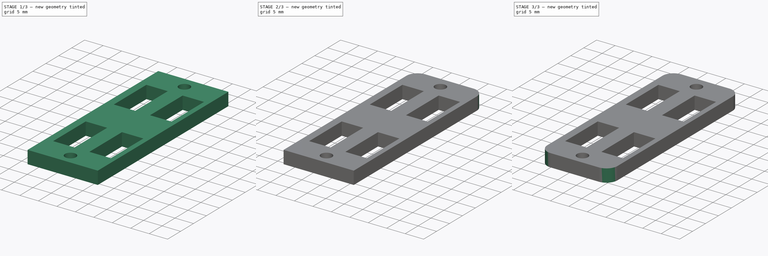
[diagram: build sequence overview — one tinted view per stage of 3, left to right]
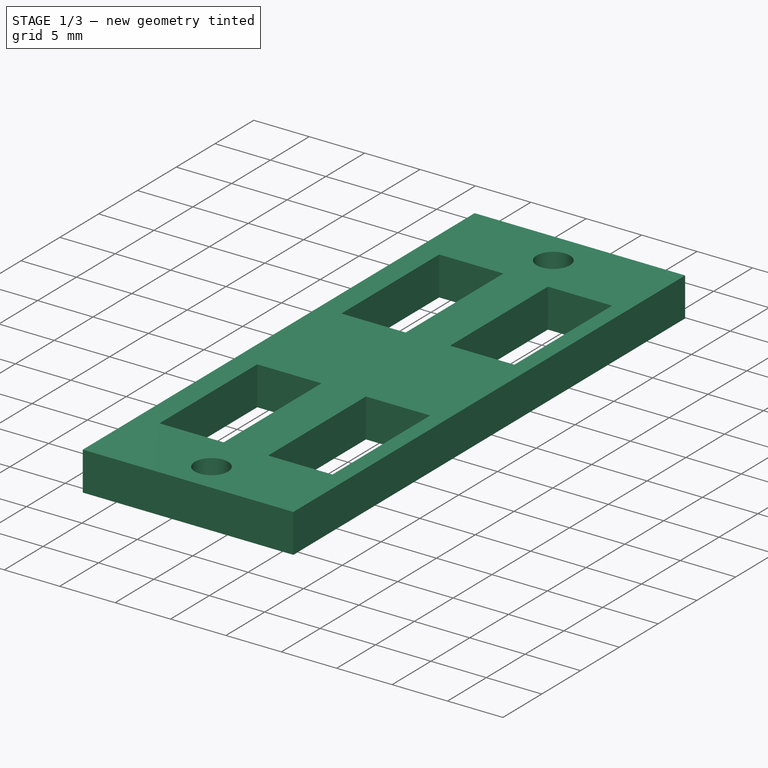
[diagram: stage 1 of 3 — iso view after this stage's code; geometry added in this stage tinted green]
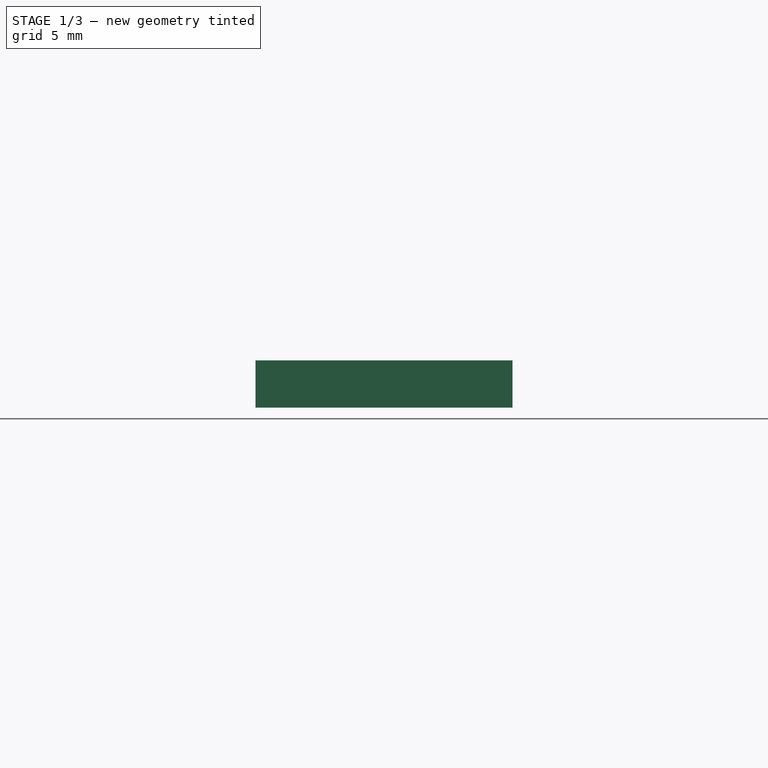
[diagram: stage 1 of 3 — front view after this stage's code; geometry added in this stage tinted green]
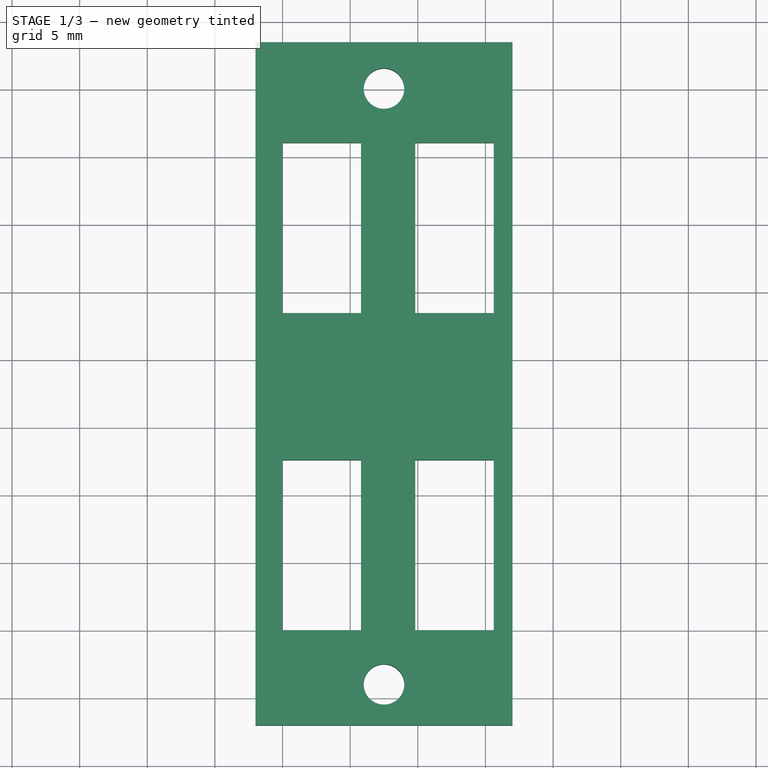
[diagram: stage 1 of 3 — top view after this stage's code; geometry added in this stage tinted green]
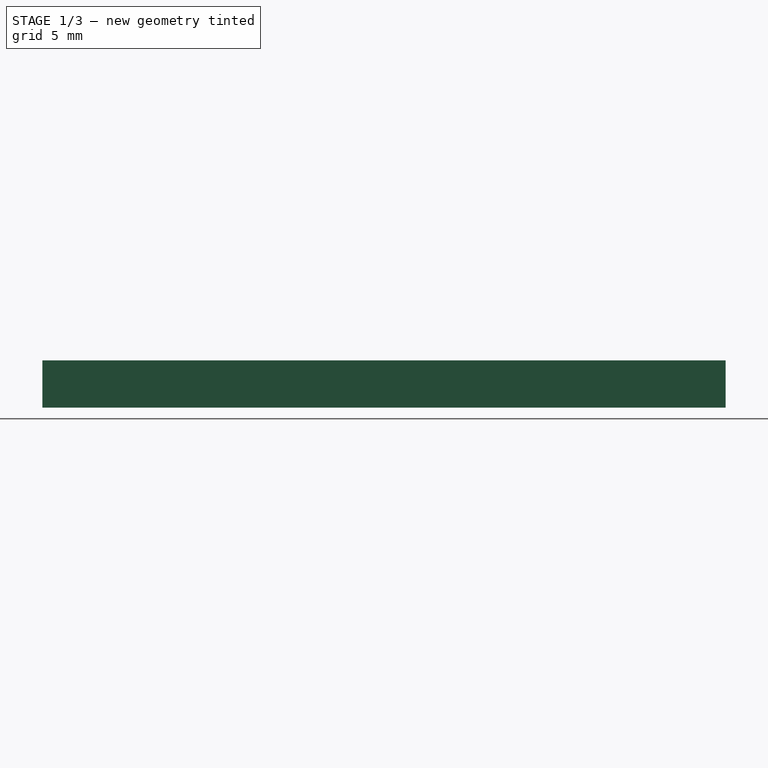
[diagram: stage 1 of 3 — right view after this stage's code; geometry added in this stage tinted green]
FCSTD DOCUMENT  (FreeCAD 0.18.4R)
Label: left_case_2_motore_conn
License: All rights reserved
LicenseURL: http://en.wikipedia.org/wiki/All_rights_reserved
objects: PartDesign::Fillet×4, Sketcher::SketchObject×2, PartDesign::Pad×1, PartDesign::Pocket×1, PartDesign::Body×1
note: 11 computed .brp shape members not serialized (recipe doc carries the construction recipe); baked Part::Feature solids carry a one-line shape summary decoded from their .brp

FEATURE [Sketcher::SketchObject] Sketch
  MapMode = 5
  Support = -> [XY_Plane]
  sketch-geometry (4):
    g0: LineSegment StartX=-2 StartY=43.48 StartZ=0 EndX=17 EndY=43.48 EndZ=0
    g1: LineSegment StartX=17 StartY=43.48 StartZ=0 EndX=17 EndY=-7.02 EndZ=0
    g2: LineSegment StartX=17 StartY=-7.02 StartZ=0 EndX=-2 EndY=-7.02 EndZ=0
    g3: LineSegment StartX=-2 StartY=-7.02 StartZ=0 EndX=-2 EndY=43.48 EndZ=0
  constraints (12):
    c: Coincident(g0,g1)
    c: Coincident(g1,g2)
    c: Coincident(g2,g3)
    c: Coincident(g3,g0)
    c: Horizontal(g2)
    c: Vertical(g1)
    c: DistanceX(g0,g0) = 19
    c: Distance(g1) = 50.5
    c: Perpendicular(g3,g0)
    c: Perpendicular(g3,g2)
    c: DistanceY(g-1,g2) = -7.02
    c: DistanceX(g-2,g2) = -2
FEATURE [PartDesign::Pad] Pad
  Length = 3.5
  Length2 = 100
  Profile = -> Sketch
  Type = 0
FEATURE [Sketcher::SketchObject] Sketch001
  ExternalGeometry = -> [Pad]
  MapMode = 5
  Placement = pos=(0,0,3.5) rot=(0,0,1;0rad)
  Support = -> [Pad]
  sketch-geometry (18):
    g0: LineSegment StartX=0 StartY=36.05 StartZ=0 EndX=5.8 EndY=36.05 EndZ=0
    g1: LineSegment StartX=5.8 StartY=36.05 StartZ=0 EndX=5.8 EndY=23.45 EndZ=0
    g2: LineSegment StartX=5.8 StartY=23.45 StartZ=0 EndX=0 EndY=23.45 EndZ=0
    g3: LineSegment StartX=0 StartY=23.45 StartZ=0 EndX=0 EndY=36.05 EndZ=0
    g4: LineSegment StartX=9.81 StartY=36.05 StartZ=0 EndX=15.61 EndY=36.05 EndZ=0
    g5: LineSegment StartX=15.61 StartY=36.05 StartZ=0 EndX=15.61 EndY=23.45 EndZ=0
    g6: LineSegment StartX=15.61 StartY=23.45 StartZ=0 EndX=9.81 EndY=23.45 EndZ=0
    g7: LineSegment StartX=9.81 StartY=23.45 StartZ=0 EndX=9.81 EndY=36.05 EndZ=0
    g8: LineSegment StartX=0 StartY=12.6 StartZ=0 EndX=5.8 EndY=12.6 EndZ=0
    g9: LineSegment StartX=5.8 StartY=12.6 StartZ=0 EndX=5.8 EndY=0 EndZ=0
    g10: LineSegment StartX=5.8 StartY=0 StartZ=0 EndX=0 EndY=0 EndZ=0
    g11: LineSegment StartX=0 StartY=0 StartZ=0 EndX=0 EndY=12.6 EndZ=0
    g12: LineSegment StartX=9.81 StartY=0 StartZ=0 EndX=15.61 EndY=0 EndZ=0
    g13: LineSegment StartX=15.61 StartY=0 StartZ=0 EndX=15.61 EndY=12.6 EndZ=0
    g14: LineSegment StartX=15.61 StartY=12.6 StartZ=0 EndX=9.81 EndY=12.6 EndZ=0
    g15: LineSegment StartX=9.81 StartY=12.6 StartZ=0 EndX=9.81 EndY=0 EndZ=0
    g16: Circle CenterX=7.5 CenterY=-4 CenterZ=0 NormalX=0 NormalY=0 NormalZ=1 AngleXU=0 Radius=1.5
    g17: Circle CenterX=7.5 CenterY=40.05 CenterZ=0 NormalX=0 NormalY=0 NormalZ=1 AngleXU=0 Radius=1.5
  constraints (55):
    c: Coincident(g0,g1)
    c: Coincident(g1,g2)
    c: Coincident(g2,g3)
    c: Coincident(g3,g0)
    c: Horizontal(g0)
    c: Horizontal(g2)
    c: Vertical(g1)
    c: Vertical(g3)
    c: Coincident(g4,g5)
    c: Coincident(g5,g6)
    c: Coincident(g6,g7)
    c: Coincident(g7,g4)
    c: Horizontal(g4)
    c: Horizontal(g6)
    c: Vertical(g5)
    c: Vertical(g7)
    c: Coincident(g8,g9)
    c: Coincident(g9,g10)
    c: Coincident(g10,g11)
    c: Coincident(g11,g8)
    c: Horizontal(g8)
    c: Horizontal(g10)
    c: Vertical(g9)
    c: Vertical(g11)
    c: DistanceY(g1,g1) = 12.6
    c: DistanceY(g5,g5) = 12.6
    c: DistanceY(g9,g9) = 12.6
    c: Coincident(g12,g13)
    c: Coincident(g13,g14)
    c: Coincident(g14,g15)
    c: Coincident(g15,g12)
    c: Horizontal(g12)
    c: Horizontal(g14)
    c: Vertical(g13)
    c: Vertical(g15)
    c: DistanceY(g13,g13) = 12.6
    c: DistanceX(g0,g0) = 5.8
    c: DistanceX(g4,g4) = 5.8
    c: DistanceX(g8,g8) = 5.8
    c: DistanceX(g14,g14) = 5.8
    c: Horizontal(g0,g4)
    c: Horizontal(g10,g12)
    c: Horizontal(g12,g-1)
    c: Vertical(g8,g2)
    c: Vertical(g14,g6)
    c: PointOnObject(g2,g-2)
    c: Radius(g16) = 1.5
    c: Radius(g17) = 1.5
    c: DistanceY(g-1,g16) = -4
    c: Distance(g-4) = 50.5
    c: Distance(g-4) = 50.5
    c: Distance(g17,g4) = 4
    c: Distance(g4,g1) = 4.01
    c: Distance(g17,g-4) = 9.5
    c: Distance(g16,g-4) = 9.5
FEATURE [PartDesign::Pocket] Pocket
  BaseFeature = -> Pad
  Length = 3.5
  Length2 = 100
  Profile = -> Sketch001
  Type = 0
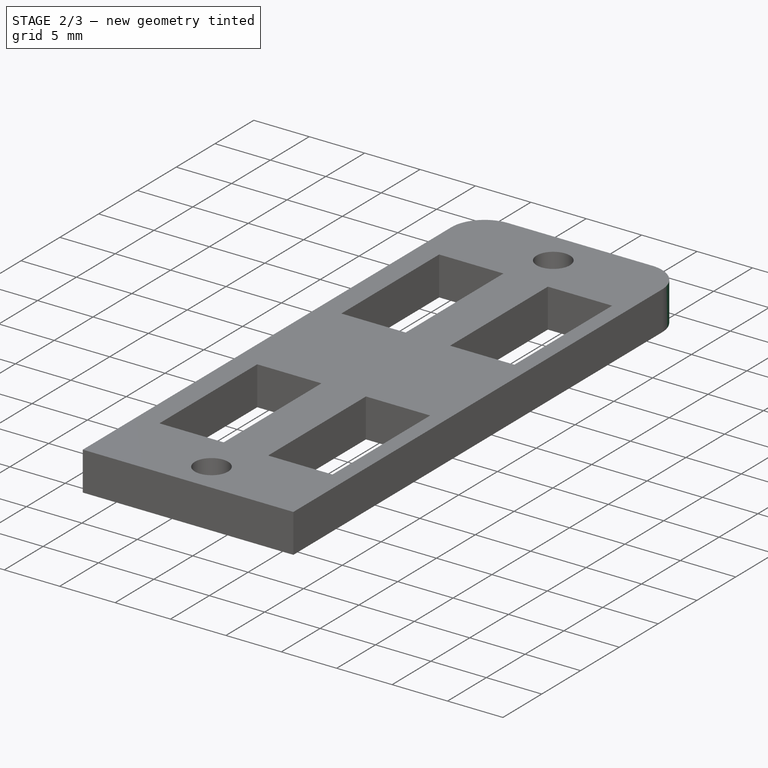
[diagram: stage 2 of 3 — iso view after this stage's code; geometry added in this stage tinted green]
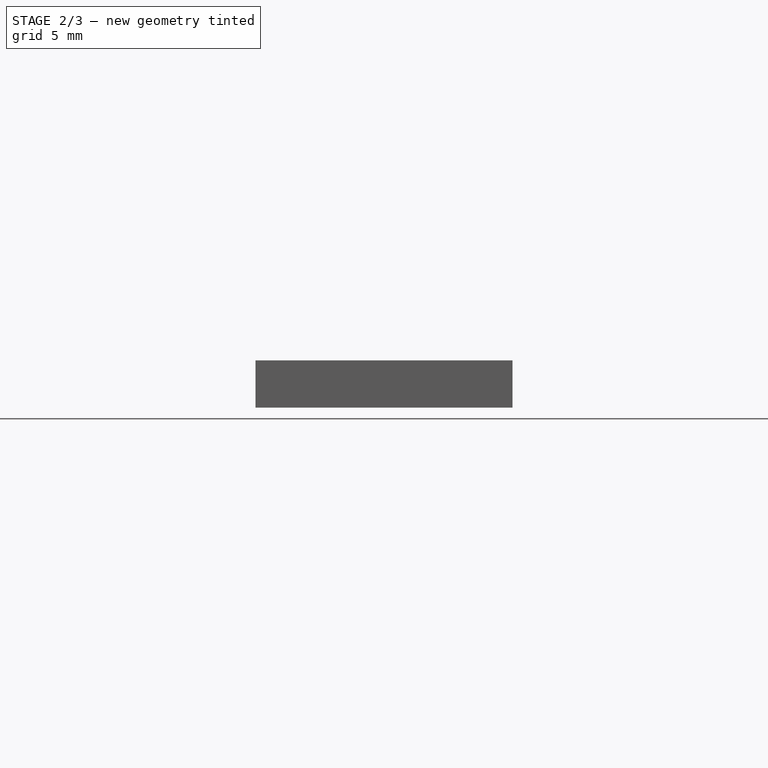
[diagram: stage 2 of 3 — front view after this stage's code; geometry added in this stage tinted green]
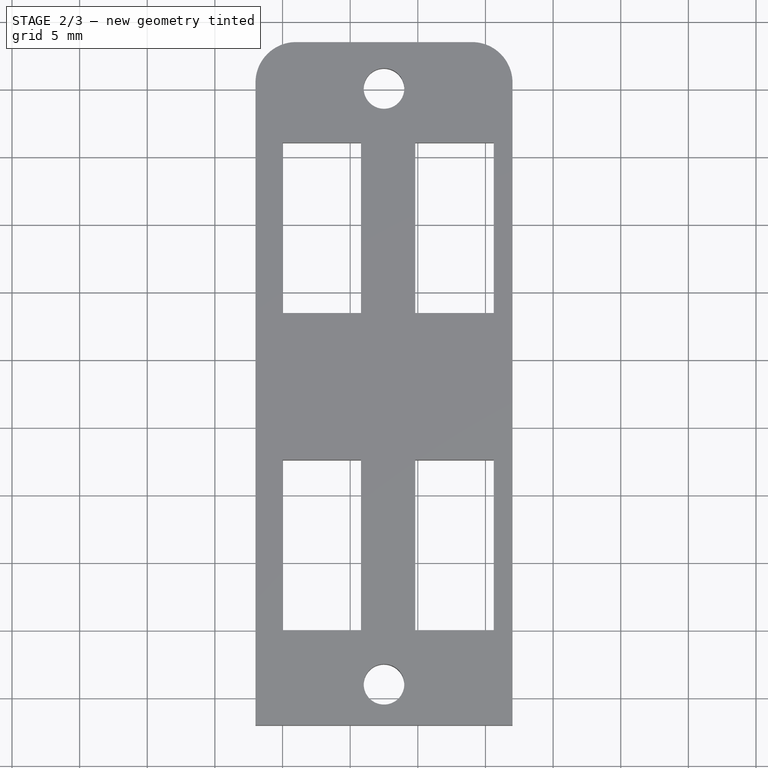
[diagram: stage 2 of 3 — top view after this stage's code; geometry added in this stage tinted green]
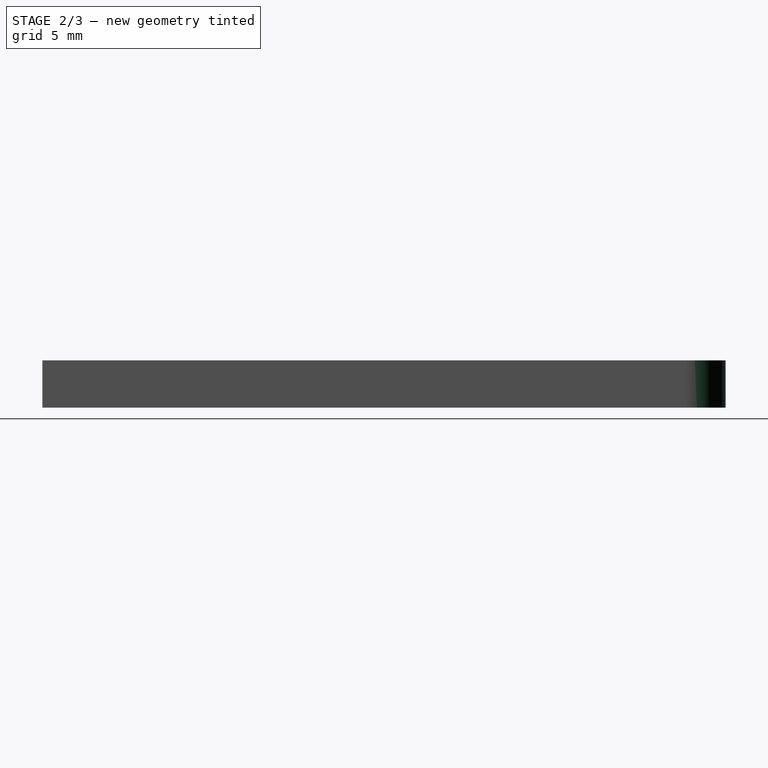
[diagram: stage 2 of 3 — right view after this stage's code; geometry added in this stage tinted green]
FEATURE [PartDesign::Fillet] Fillet
  Base = -> Pocket [Edge1]
  BaseFeature = -> Pocket
  Radius = 3
FEATURE [PartDesign::Fillet] Fillet001
  Base = -> Fillet [Edge3]
  BaseFeature = -> Fillet
  Radius = 3
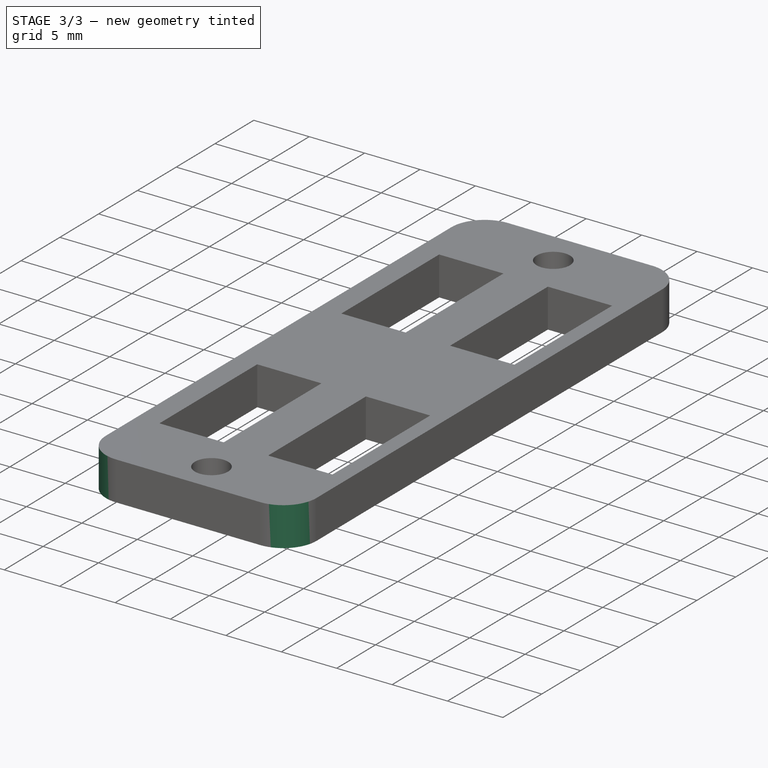
[diagram: stage 3 of 3 — iso view after this stage's code; geometry added in this stage tinted green]
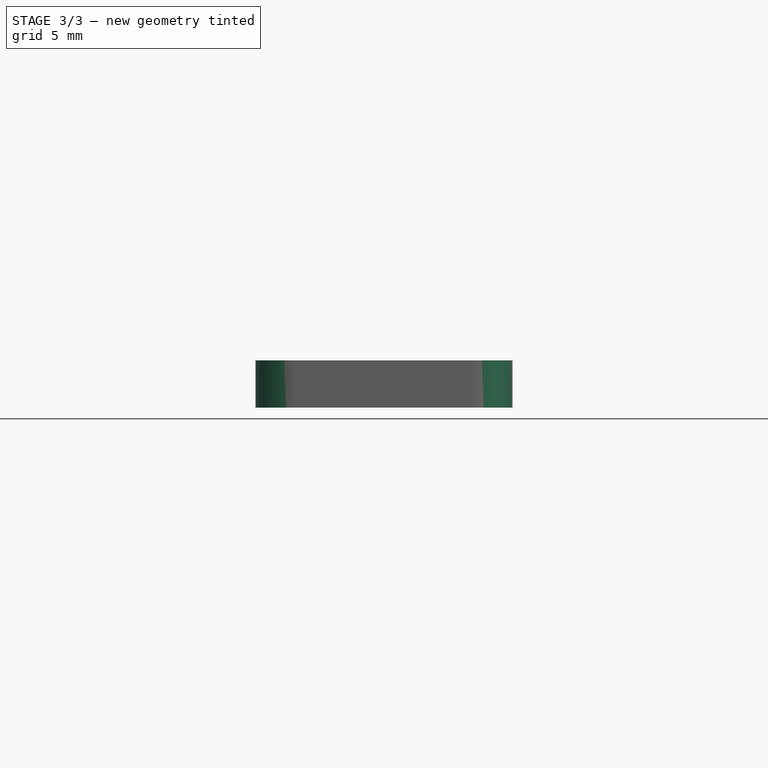
[diagram: stage 3 of 3 — front view after this stage's code; geometry added in this stage tinted green]
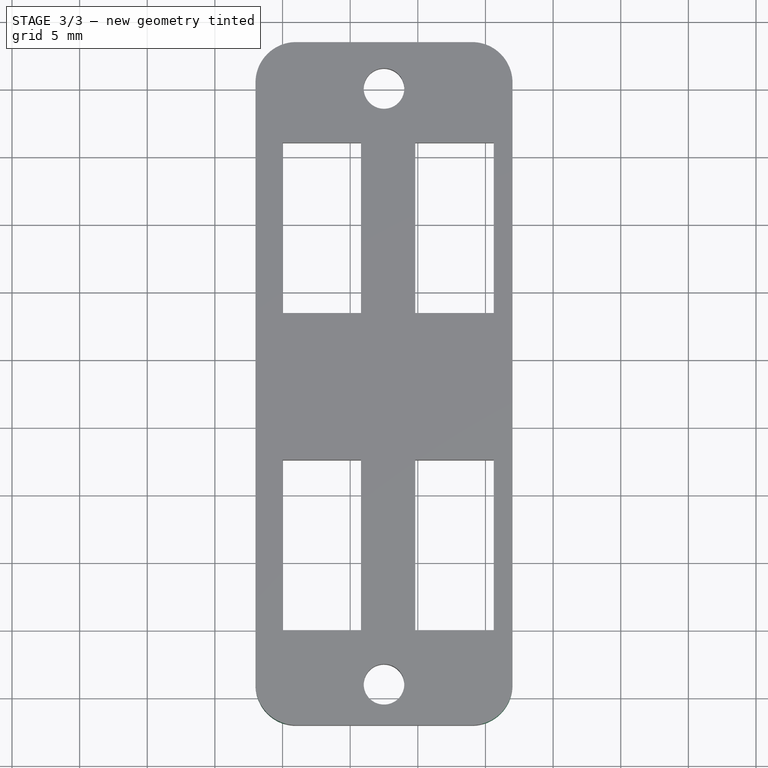
[diagram: stage 3 of 3 — top view after this stage's code; geometry added in this stage tinted green]
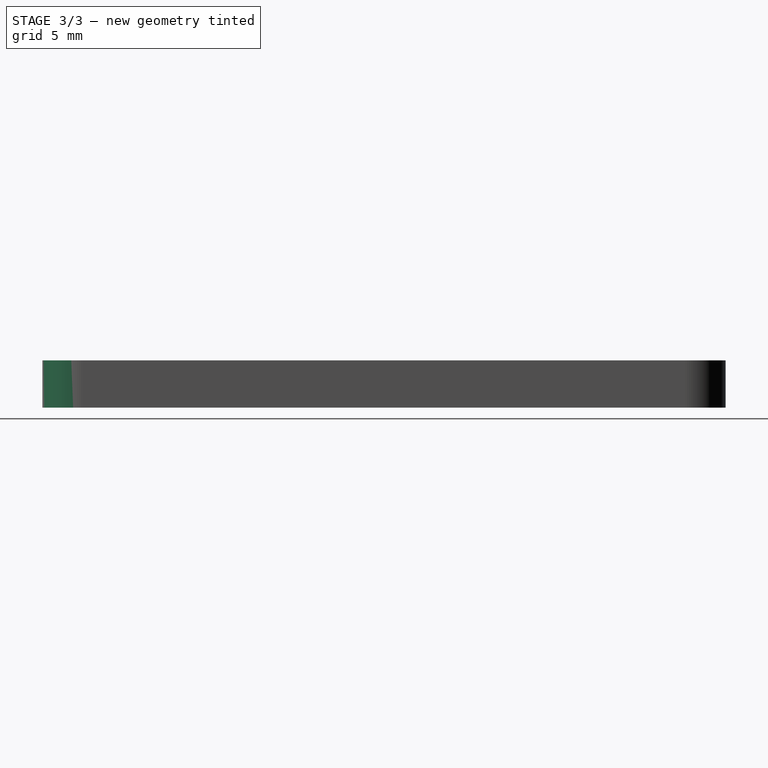
[diagram: stage 3 of 3 — right view after this stage's code; geometry added in this stage tinted green]
FEATURE [PartDesign::Fillet] Fillet002
  Base = -> Fillet001 [Edge53]
  BaseFeature = -> Fillet001
  Radius = 3
FEATURE [PartDesign::Fillet] Fillet003
  Base = -> Fillet002 [Edge33]
  BaseFeature = -> Fillet002
  Radius = 3
FEATURE [PartDesign::Body] Body
  Group = -> [Sketch,Pad,Sketch001,Pocket,Fillet,Fillet001,Fillet002,Fillet003]
  Origin = -> Origin
  Tip = -> Fillet003
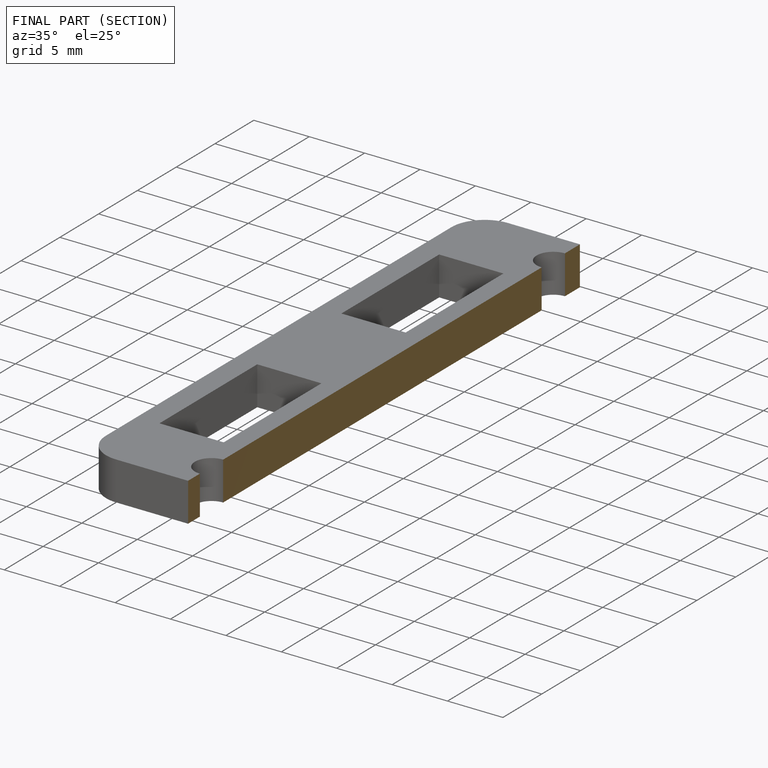
[diagram: finished part — half-section view (interior)]
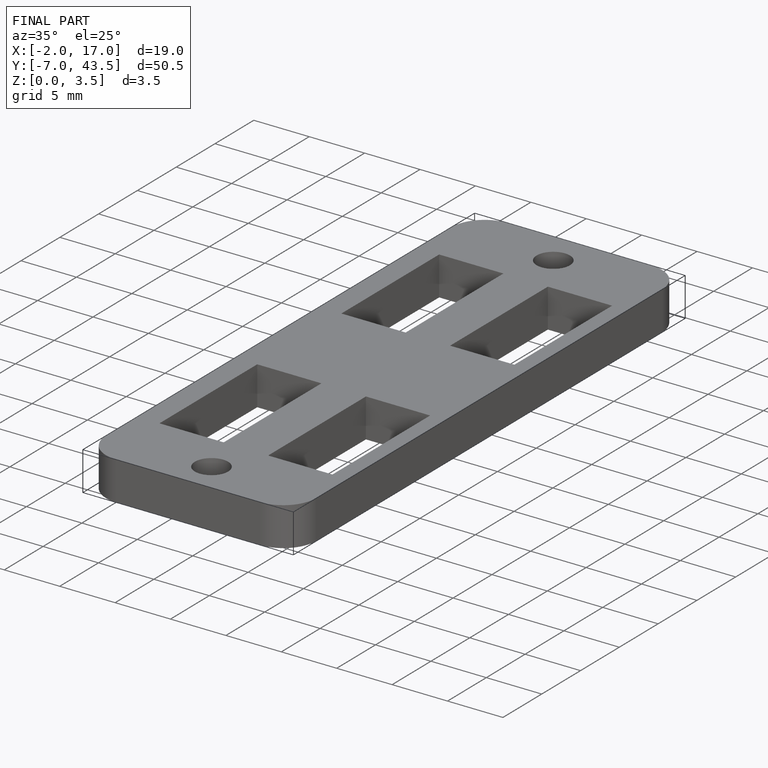
[diagram: finished part — iso view with bounding-box wireframe]
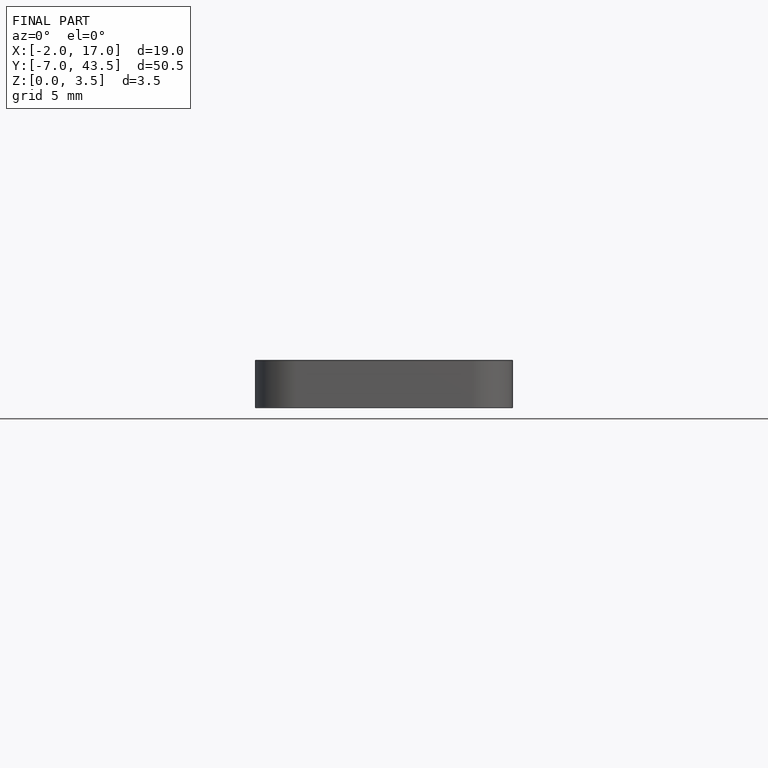
[diagram: finished part — front view with bounding-box wireframe]
